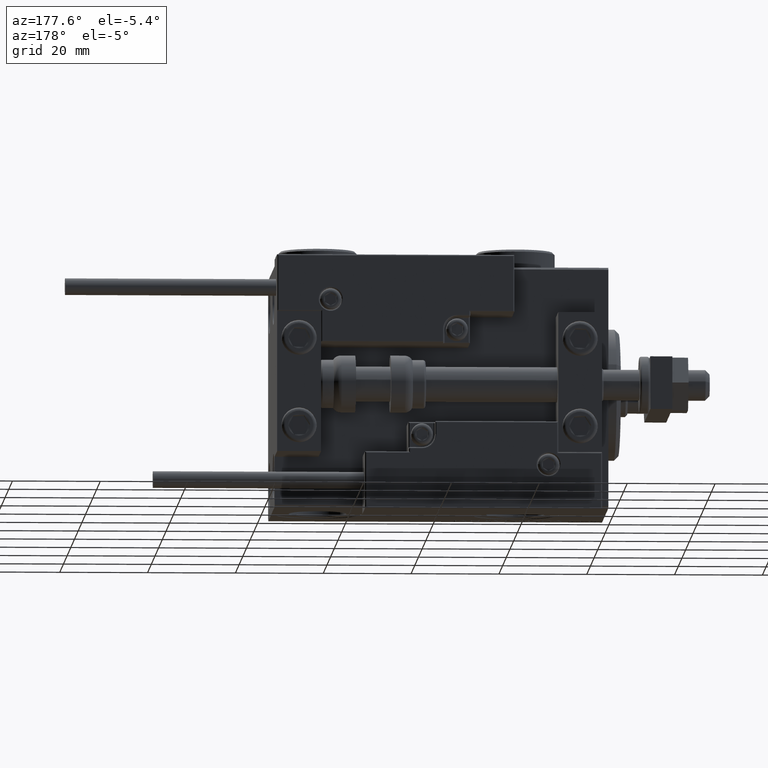
[diagram: clean part render]
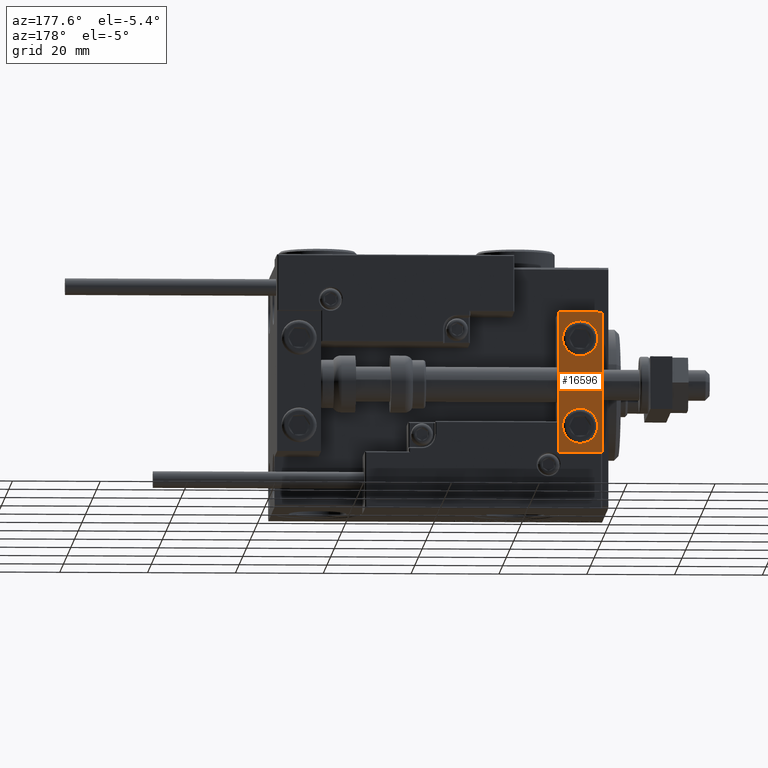
[diagram: same view with one face highlighted and labeled with its STEP entity id]
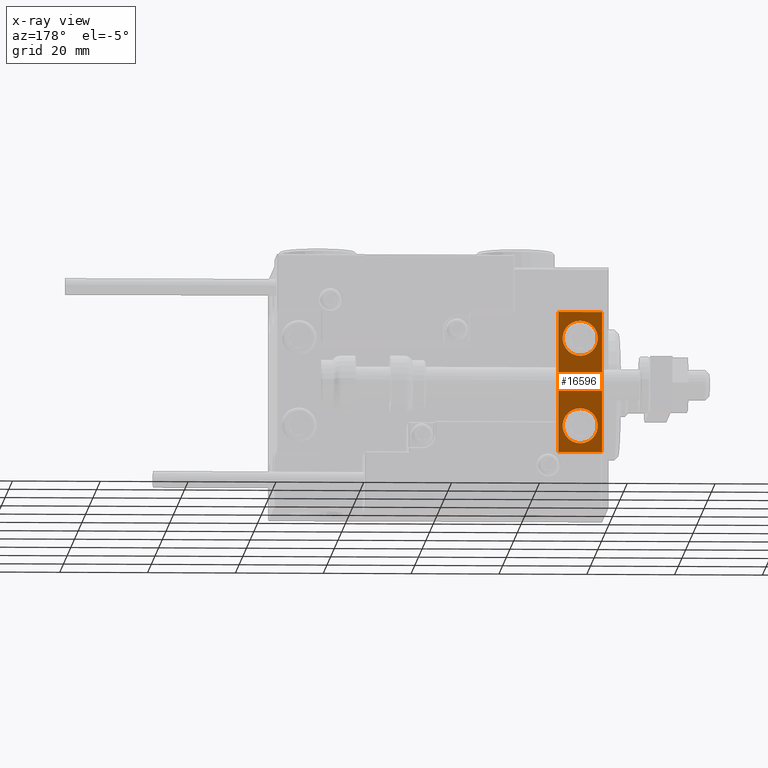
[diagram: x-ray of the same camera — body ghosted, the highlighted face saturated]
A machine part, auxiliary view. The second image highlights one B-rep face of the part: STEP entity #16596.
The next image is the same camera in x-ray: the body ghosted, the highlighted face saturated — about 0% of this face is hidden behind the body in this view.
In plain terms, the highlighted planar face has unit normal (-0, 1, -0).
Its self-contained STEP definition (entity closure, byte-faithful):
#108 = CARTESIAN_POINT ( 'NONE',  ( 5.000000000000000888, 6.999999999999999112, -6.000000000000000888 ) ) ;
#502 = DIRECTION ( 'NONE',  ( 0.000000000000000000, 0.000000000000000000, 1.000000000000000000 ) ) ;
#775 = VERTEX_POINT ( 'NONE', #4966 ) ;
#1540 = CARTESIAN_POINT ( 'NONE',  ( 0.000000000000000000, 7.000000000000000000, -16.00000000000000711 ) ) ;
#1851 = EDGE_LOOP ( 'NONE', ( #35865, #16743, #9327, #48429 ) ) ;
#1931 = ORIENTED_EDGE ( 'NONE', *, *, #22044, .T. ) ;
#2031 = DIRECTION ( 'NONE',  ( -0.000000000000000000, 1.000000000000000000, 0.000000000000000000 ) ) ;
#3137 = LINE ( 'NONE', #39104, #10605 ) ;
#4676 = CARTESIAN_POINT ( 'NONE',  ( 10.00000000000000000, 7.000000000000000000, -16.00000000000000711 ) ) ;
#4801 = CARTESIAN_POINT ( 'NONE',  ( 10.00000000000000000, 7.000000000000000000, 15.99999999999999289 ) ) ;
#4966 = CARTESIAN_POINT ( 'NONE',  ( 5.000000000000001776, 7.000000000000000888, 6.000000000000000888 ) ) ;
#5687 = FACE_BOUND ( 'NONE', #7787, .T. ) ;
#6338 = EDGE_CURVE ( 'NONE', #11286, #44118, #33133, .T. ) ;
#7787 = EDGE_LOOP ( 'NONE', ( #37238, #32714 ) ) ;
#8418 = VERTEX_POINT ( 'NONE', #108 ) ;
#9327 = ORIENTED_EDGE ( 'NONE', *, *, #6338, .T. ) ;
#9744 = CIRCLE ( 'NONE', #13059, 4.000000000000000000 ) ;
#10605 = VECTOR ( 'NONE', #41994, 1000.000000000000000 ) ;
#11286 = VERTEX_POINT ( 'NONE', #26055 ) ;
#11481 = CARTESIAN_POINT ( 'NONE',  ( 5.000000000000000888, 6.999999999999999112, -10.00000000000000178 ) ) ;
#12632 = CARTESIAN_POINT ( 'NONE',  ( 5.000000000000000888, 6.999999999999999112, -10.00000000000000178 ) ) ;
#13059 = AXIS2_PLACEMENT_3D ( 'NONE', #40011, #19725, #39516 ) ;
#16044 = DIRECTION ( 'NONE',  ( 0.000000000000000000, 0.000000000000000000, 1.000000000000000000 ) ) ;
#16596 = ADVANCED_FACE ( 'NONE', ( #49235, #5687, #32832 ), #21610, .T. ) ;
#16743 = ORIENTED_EDGE ( 'NONE', *, *, #18042, .F. ) ;
#18037 = CARTESIAN_POINT ( 'NONE',  ( 5.000000000000000888, 7.000000000000000888, 10.00000000000000178 ) ) ;
#18042 = EDGE_CURVE ( 'NONE', #11286, #51342, #44712, .T. ) ;
#19534 = CIRCLE ( 'NONE', #32862, 4.000000000000000000 ) ;
#19725 = DIRECTION ( 'NONE',  ( 1.848892746611746419E-32, -1.000000000000000000, 6.616381192988677562E-17 ) ) ;
#19952 = DIRECTION ( 'NONE',  ( 0.000000000000000000, 1.000000000000000000, -6.065466699219605527E-17 ) ) ;
#20463 = DIRECTION ( 'NONE',  ( 1.848892746611746419E-32, -1.000000000000000000, 6.616381192988677562E-17 ) ) ;
#21494 = CARTESIAN_POINT ( 'NONE',  ( 5.000000000000000888, 7.000000000000000888, 14.00000000000000178 ) ) ;
#21610 = PLANE ( 'NONE',  #29659 ) ;
#22044 = EDGE_CURVE ( 'NONE', #775, #42877, #9744, .T. ) ;
#22256 = CIRCLE ( 'NONE', #43889, 4.000000000000000888 ) ;
#25466 = VECTOR ( 'NONE', #48225, 1000.000000000000000 ) ;
#26055 = CARTESIAN_POINT ( 'NONE',  ( 10.00000000000000000, 7.000000000000000000, 15.99999999999999289 ) ) ;
#26872 = CIRCLE ( 'NONE', #27723, 4.000000000000000888 ) ;
#27723 = AXIS2_PLACEMENT_3D ( 'NONE', #12632, #19952, #16044 ) ;
#28404 = CARTESIAN_POINT ( 'NONE',  ( 10.00000000000000000, 7.000000000000000000, -16.00000000000000711 ) ) ;
#29279 = CARTESIAN_POINT ( 'NONE',  ( 0.000000000000000000, 7.000000000000000000, 15.99999999999999289 ) ) ;
#29319 = DIRECTION ( 'NONE',  ( -1.000000000000000000, -0.000000000000000000, -0.000000000000000000 ) ) ;
#29659 = AXIS2_PLACEMENT_3D ( 'NONE', #48724, #2031, #37769 ) ;
#30514 = VECTOR ( 'NONE', #29319, 1000.000000000000000 ) ;
#32339 = LINE ( 'NONE', #4676, #25466 ) ;
#32714 = ORIENTED_EDGE ( 'NONE', *, *, #49046, .F. ) ;
#32832 = FACE_BOUND ( 'NONE', #36907, .T. ) ;
#32862 = AXIS2_PLACEMENT_3D ( 'NONE', #18037, #20463, #34180 ) ;
#33133 = LINE ( 'NONE', #49024, #34278 ) ;
#34180 = DIRECTION ( 'NONE',  ( 0.000000000000000000, 0.000000000000000000, 1.000000000000000000 ) ) ;
#34278 = VECTOR ( 'NONE', #45631, 1000.000000000000000 ) ;
#34286 = ORIENTED_EDGE ( 'NONE', *, *, #38634, .T. ) ;
#34965 = EDGE_CURVE ( 'NONE', #8418, #42841, #26872, .T. ) ;
#35865 = ORIENTED_EDGE ( 'NONE', *, *, #48868, .F. ) ;
#36907 = EDGE_LOOP ( 'NONE', ( #34286, #1931 ) ) ;
#37238 = ORIENTED_EDGE ( 'NONE', *, *, #34965, .F. ) ;
#37769 = DIRECTION ( 'NONE',  ( 0.000000000000000000, -0.000000000000000000, 1.000000000000000000 ) ) ;
#38634 = EDGE_CURVE ( 'NONE', #42877, #775, #19534, .T. ) ;
#39104 = CARTESIAN_POINT ( 'NONE',  ( 0.000000000000000000, 7.000000000000000000, 15.99999999999999289 ) ) ;
#39516 = DIRECTION ( 'NONE',  ( 0.000000000000000000, 0.000000000000000000, 1.000000000000000000 ) ) ;
#40011 = CARTESIAN_POINT ( 'NONE',  ( 5.000000000000000888, 7.000000000000000888, 10.00000000000000178 ) ) ;
#40117 = DIRECTION ( 'NONE',  ( 0.000000000000000000, 1.000000000000000000, -6.065466699219605527E-17 ) ) ;
#40500 = CARTESIAN_POINT ( 'NONE',  ( 5.000000000000001776, 6.999999999999999112, -14.00000000000000178 ) ) ;
#41326 = EDGE_CURVE ( 'NONE', #44118, #49112, #32339, .T. ) ;
#41994 = DIRECTION ( 'NONE',  ( 0.000000000000000000, 0.000000000000000000, -1.000000000000000000 ) ) ;
#42841 = VERTEX_POINT ( 'NONE', #40500 ) ;
#42877 = VERTEX_POINT ( 'NONE', #21494 ) ;
#43889 = AXIS2_PLACEMENT_3D ( 'NONE', #11481, #40117, #502 ) ;
#44118 = VERTEX_POINT ( 'NONE', #28404 ) ;
#44712 = LINE ( 'NONE', #4801, #30514 ) ;
#45631 = DIRECTION ( 'NONE',  ( 0.000000000000000000, 0.000000000000000000, -1.000000000000000000 ) ) ;
#48225 = DIRECTION ( 'NONE',  ( -1.000000000000000000, -0.000000000000000000, -0.000000000000000000 ) ) ;
#48429 = ORIENTED_EDGE ( 'NONE', *, *, #41326, .T. ) ;
#48724 = CARTESIAN_POINT ( 'NONE',  ( 10.00000000000000000, 7.000000000000000000, 15.99999999999999289 ) ) ;
#48868 = EDGE_CURVE ( 'NONE', #51342, #49112, #3137, .T. ) ;
#49024 = CARTESIAN_POINT ( 'NONE',  ( 10.00000000000000000, 7.000000000000000000, 15.99999999999999289 ) ) ;
#49046 = EDGE_CURVE ( 'NONE', #42841, #8418, #22256, .T. ) ;
#49112 = VERTEX_POINT ( 'NONE', #1540 ) ;
#49235 = FACE_OUTER_BOUND ( 'NONE', #1851, .T. ) ;
#51342 = VERTEX_POINT ( 'NONE', #29279 ) ;